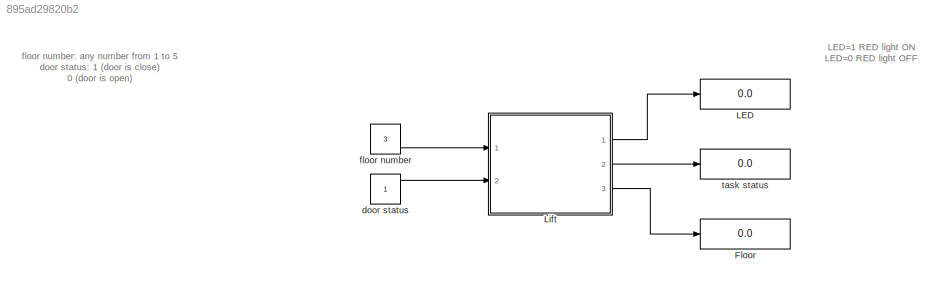
MODEL slx_895ad29820b2
KIND model
CONFIG AbsTol = auto
CONFIG EnableMultiTasking = off
CONFIG FixedStep = auto
CONFIG MaxStep = auto
CONFIG MinStep = auto
CONFIG RelTol = 1e-3
CONFIG SampleTimeConstraint = Unconstrained
CONFIG SolverName = VariableStepAuto
CONFIG StartTime = 0.0
CONFIG StopTime = 10.0
BLOCK [Display] Floor
  Decimation = 1
  Ports = [1]
BLOCK [Display] LED
  Decimation = 1
  Ports = [1]
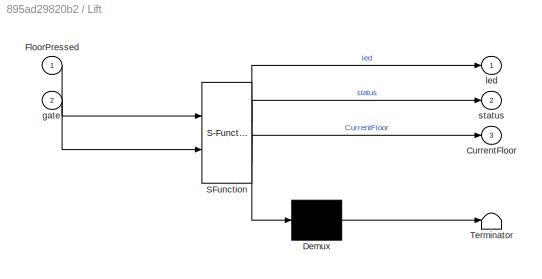
BLOCK [SubSystem] Lift
  ErrorFcn = Stateflow.Translate.translate
  PermitHierarchicalResolution = ExplicitOnly
  Ports = [2, 3]
  RequestExecContextInheritance = off
  SFBlockType = Chart
  TreatAsAtomicUnit = on
BLOCK [Demux] Lift/ Demux 
  Outputs = 1
  Ports = [1, 1]
BLOCK [S-Function] Lift/ SFunction 
  EnableBusSupport = on
  FunctionName = sf_sfun
  PortCounts = [2 4]
  Ports = [2, 4]
  SFcnIsStateOwnerBlock = off
  SFunctionDeploymentMode = off
  Tag = Stateflow S-Function 3
BLOCK [Terminator] Lift/ Terminator 
BLOCK [Outport] Lift/CurrentFloor
  Port = 3
BLOCK [Inport] Lift/FloorPressed
BLOCK [Inport] Lift/gate
  Port = 2
BLOCK [Outport] Lift/led
BLOCK [Outport] Lift/status
  Port = 2
BLOCK [Constant] door status
BLOCK [Constant] floor number
  Value = 3
BLOCK [Display] task status
  Decimation = 1
  Ports = [1]
ANNOTATION (root): floor number: any number from 1 to 5 door status: 1 (door is close) 0 (door is open)
ANNOTATION (root): LED=1 RED light ON LED=0 RED light OFF
LINE Lift:1 -> LED:1
LINE Lift:2 -> task status:1
LINE Lift:3 -> Floor:1
LINE door status:1 -> Lift:2
LINE floor number:1 -> Lift:1
CHART Lift states=10 transitions=36
  STATE_LABEL 'LiftOperation\nentry:\nstatus=0;'
  STATE_LABEL 'LiftFunctionOn\nentry:\nstatus=1;\n'
  STATE_LABEL 'FirstFloor\nentry:\nled=not(gate);\nstatus=1;\nduring:\nCurrentFloor=1;\nFloorCheck(CurrentFloor);\nexit:\nstatus=0'
  STATE_LABEL 'GroundFloor\nentry:\nstatus=1;\nled=not(gate);\nduring:\nCurrentFloor=0;\nFloorCheck(CurrentFloor);\nexit:\nstatus=0;\n'
  STATE_LABEL 'FifthFloor\nentry:\nled=not(gate);\nstatus=1;\nduring:\nCurrentFloor=5;\nFloorCheck(CurrentFloor);\nexit:\nstatus=0;\n'
  STATE_LABEL 'SecondFloor\nentry:\nled=not(gate);\nstatus=1;\nduring:\nCurrentFloor=2;\nFloorCheck(CurrentFloor);\nexit:\nstatus=0;\n'
  STATE_LABEL 'FourthFloor\nentry:\nled=not(gate);\nduring:\nCurrentFloor=4;\nFloorCheck(CurrentFloor);\nexit:\nstatus=0;'
  STATE_LABEL 'ThirdFloor\nentry:\nled=not(gate);\nstatus=1;\nduring:\nCurrentFloor=3;\nFloorCheck(CurrentFloor);\nexit:\nstatus=0;\n'
  STATE_LABEL 'LiftFunctionOff\nentry:\nstatus=0;'
  STATE_LABEL '[gate==1]'
  STATE_LABEL 'down'
  STATE_LABEL '[gate==1]'
  STATE_LABEL 'up'
  STATE_LABEL '[gate == 1]'
  STATE_LABEL '[gate == 0]'
  STATE_LABEL '[gate==0]'
  STATE_LABEL 'up'
  STATE_LABEL '[gate==0]'
  STATE_LABEL 'down'
  STATE_LABEL '[gate==1]'
  STATE_LABEL '[gate==1]'
  STATE_LABEL '[gate==0]'
  STATE_LABEL 'up'
  STATE_LABEL '[gate==0]'
  STATE_LABEL 'down'
  STATE_LABEL '[gate==0]'
  STATE_LABEL 'up'
  STATE_LABEL '[gate==1]'
  STATE_LABEL '[gate==1]'
  STATE_LABEL '[gate==0]'
  STATE_LABEL 'down'
  STATE_LABEL '[gate==1]'
  STATE_LABEL '[gate==0]'
  STATE_LABEL 'down'
  STATE_LABEL '[gate==1]'
  STATE_LABEL 'up'
  STATE_LABEL '[gate==1]'
  STATE_LABEL '[gate==0]'
  STATE_LABEL 'LiftFunctionOn\nentry:\nstatus=1;\n'
  STATE_LABEL 'FirstFloor\nentry:\nled=not(gate);\nstatus=1;\nduring:\nCurrentFloor=1;\nFloorCheck(CurrentFloor);\nexit:\nstatus=0'
CHART  states=0 transitions=0
